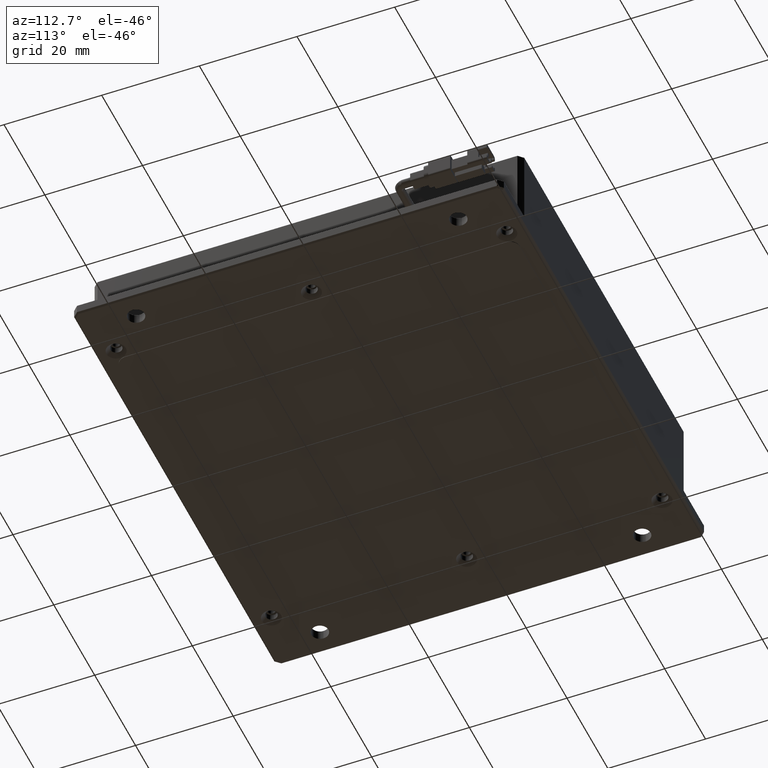
[diagram: clean part render]
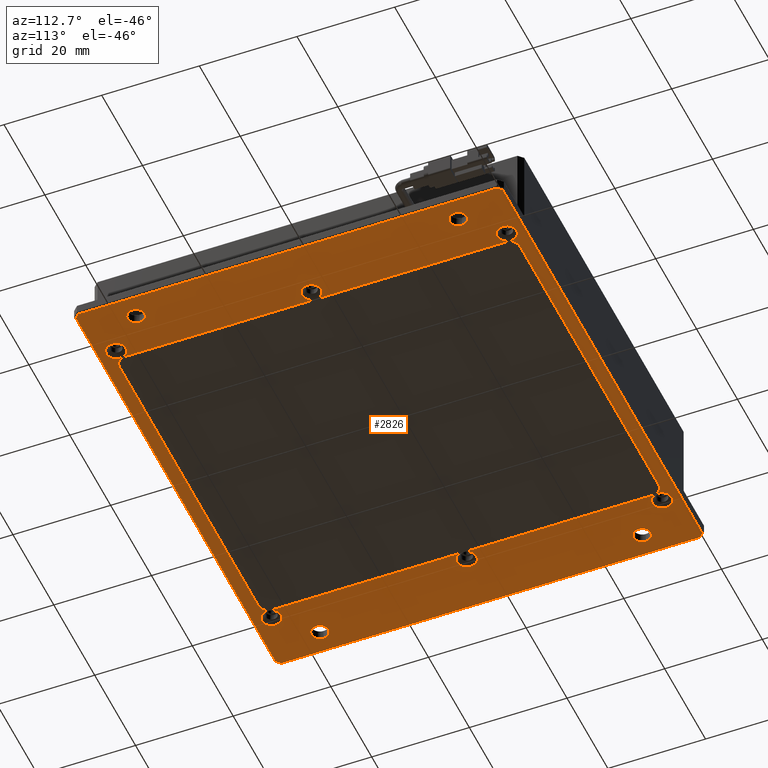
[diagram: same view with one face highlighted and labeled with its STEP entity id]
A machine part, auxiliary view. The second image highlights one B-rep face of the part: STEP entity #2826.
In plain terms, the highlighted planar face has unit normal (0, 0, -1).
Its self-contained STEP definition (entity closure, byte-faithful):
#55 = LINE ( 'NONE', #16753, #489 ) ;
#106 = VERTEX_POINT ( 'NONE', #8374 ) ;
#120 = DIRECTION ( 'NONE',  ( 4.448008912761044700E-017, 1.000000000000000000, -0.0000000000000000000 ) ) ;
#317 = CARTESIAN_POINT ( 'NONE',  ( -31.82342588928733200, -47.90007636502477300, -2.000000000004545700 ) ) ;
#372 = CIRCLE ( 'NONE', #15891, 1.999999999930418500 ) ;
#455 = CARTESIAN_POINT ( 'NONE',  ( 60.30231004200072700, -37.20007636502477100, -2.000000000004547500 ) ) ;
#489 = VECTOR ( 'NONE', #8498, 1000.000000000000000 ) ;
#614 = LINE ( 'NONE', #1420, #14351 ) ;
#713 = VERTEX_POINT ( 'NONE', #317 ) ;
#745 = CARTESIAN_POINT ( 'NONE',  ( -18.94768995799925900, 34.79992363497521500, -2.000000000004547500 ) ) ;
#820 = DIRECTION ( 'NONE',  ( 0.7071067811865386900, -0.7071067811865564500, 2.976314945436249100E-015 ) ) ;
#866 = CARTESIAN_POINT ( 'NONE',  ( -27.94768995799927000, 28.79992363497522900, -2.000000000004547500 ) ) ;
#946 = ORIENTED_EDGE ( 'NONE', *, *, #12706, .F. ) ;
#955 = LINE ( 'NONE', #2759, #15119 ) ;
#1078 = ORIENTED_EDGE ( 'NONE', *, *, #8092, .F. ) ;
#1105 = DIRECTION ( 'NONE',  ( -1.000000000000000000, 0.0000000000000000000, 0.0000000000000000000 ) ) ;
#1130 = VERTEX_POINT ( 'NONE', #9166 ) ;
#1150 = CIRCLE ( 'NONE', #3211, 2.000000000009102100 ) ;
#1155 = DIRECTION ( 'NONE',  ( -0.0000000000000000000, -1.000000000000000000, -0.0000000000000000000 ) ) ;
#1160 = DIRECTION ( 'NONE',  ( -0.0000000000000000000, -0.0000000000000000000, 1.000000000000000000 ) ) ;
#1188 = EDGE_CURVE ( 'NONE', #12519, #1525, #13114, .T. ) ;
#1207 = EDGE_CURVE ( 'NONE', #3207, #13213, #16312, .T. ) ;
#1379 = CARTESIAN_POINT ( 'NONE',  ( 51.05231004200074800, 34.79992363497521500, -2.000000000004547500 ) ) ;
#1420 = CARTESIAN_POINT ( 'NONE',  ( -32.94768995799925900, -47.90007636502477300, -2.000000000004547500 ) ) ;
#1460 = AXIS2_PLACEMENT_3D ( 'NONE', #3822, #13495, #5213 ) ;
#1477 = CARTESIAN_POINT ( 'NONE',  ( 53.05231004207031700, -44.20007636502478500, -1.999999999947704300 ) ) ;
#1496 = EDGE_CURVE ( 'NONE', #12560, #4036, #10093, .T. ) ;
#1497 = EDGE_LOOP ( 'NONE', ( #12605, #17536 ) ) ;
#1514 = ORIENTED_EDGE ( 'NONE', *, *, #12011, .F. ) ;
#1525 = VERTEX_POINT ( 'NONE', #7889 ) ;
#1556 = EDGE_LOOP ( 'NONE', ( #14469, #16270 ) ) ;
#1585 = CARTESIAN_POINT ( 'NONE',  ( 55.05231004200073400, 35.79992363497522200, -1.999999999947704300 ) ) ;
#1665 = VERTEX_POINT ( 'NONE', #6794 ) ;
#1666 = AXIS2_PLACEMENT_3D ( 'NONE', #2812, #12423, #4174 ) ;
#1682 = VERTEX_POINT ( 'NONE', #12323 ) ;
#1685 = CARTESIAN_POINT ( 'NONE',  ( 53.05231004200076200, -43.20007636502477100, -2.000000000004547500 ) ) ;
#1696 = DIRECTION ( 'NONE',  ( -0.0000000000000000000, -0.0000000000000000000, 1.000000000000000000 ) ) ;
#1729 = CARTESIAN_POINT ( 'NONE',  ( 62.05231004200072700, -37.20007636502477100, -2.000000000004547500 ) ) ;
#1755 = DIRECTION ( 'NONE',  ( 0.0000000000000000000, 0.0000000000000000000, 1.000000000000000000 ) ) ;
#1757 = VECTOR ( 'NONE', #120, 1000.000000000000000 ) ;
#1759 = VERTEX_POINT ( 'NONE', #12107 ) ;
#1821 = AXIS2_PLACEMENT_3D ( 'NONE', #866, #10471, #2222 ) ;
#1829 = FACE_BOUND ( 'NONE', #11648, .T. ) ;
#1991 = AXIS2_PLACEMENT_3D ( 'NONE', #6089, #15686, #7450 ) ;
#2026 = CARTESIAN_POINT ( 'NONE',  ( 55.05231004200073400, -4.200076365024784800, -1.999999999947704300 ) ) ;
#2053 = ORIENTED_EDGE ( 'NONE', *, *, #5964, .F. ) ;
#2204 = ORIENTED_EDGE ( 'NONE', *, *, #3273, .F. ) ;
#2222 = DIRECTION ( 'NONE',  ( -1.000000000000000000, 0.0000000000000000000, 0.0000000000000000000 ) ) ;
#2355 = CARTESIAN_POINT ( 'NONE',  ( -27.94768995799927000, 28.79992363497522900, -2.000000000004547500 ) ) ;
#2458 = CIRCLE ( 'NONE', #3255, 1.750000000000001600 ) ;
#2497 = DIRECTION ( 'NONE',  ( -0.0000000000000000000, -0.0000000000000000000, 1.000000000000000000 ) ) ;
#2522 = ORIENTED_EDGE ( 'NONE', *, *, #16069, .T. ) ;
#2545 = DIRECTION ( 'NONE',  ( -0.0000000000000000000, -0.0000000000000000000, 1.000000000000000000 ) ) ;
#2562 = CIRCLE ( 'NONE', #1821, 1.749999999999998000 ) ;
#2680 = FACE_BOUND ( 'NONE', #5235, .T. ) ;
#2698 = CARTESIAN_POINT ( 'NONE',  ( 53.05231004200075500, -43.20007636502477100, -2.000000000004547500 ) ) ;
#2754 = DIRECTION ( 'NONE',  ( 0.0000000000000000000, 0.0000000000000000000, -1.000000000000000000 ) ) ;
#2759 = CARTESIAN_POINT ( 'NONE',  ( 53.05231004200076200, -43.20007636502477100, -2.000000000004547500 ) ) ;
#2780 = AXIS2_PLACEMENT_3D ( 'NONE', #1585, #11219, #2971 ) ;
#2791 = DIRECTION ( 'NONE',  ( 0.0000000000000000000, 0.0000000000000000000, 1.000000000000000000 ) ) ;
#2812 = CARTESIAN_POINT ( 'NONE',  ( -20.94768995799925500, -44.20007636502478500, -2.000000000004547500 ) ) ;
#2826 = ADVANCED_FACE ( 'NONE', ( #6351, #5908, #13253, #12791, #2680, #9134, #5463, #1829, #16009, #12351 ), #2945, .T. ) ;
#2831 = ORIENTED_EDGE ( 'NONE', *, *, #1188, .F. ) ;
#2857 = DIRECTION ( 'NONE',  ( 1.000000000000000000, 0.0000000000000000000, 0.0000000000000000000 ) ) ;
#2884 = EDGE_LOOP ( 'NONE', ( #11410, #2831, #1078, #5909, #6581, #15117, #10429, #1514 ) ) ;
#2894 = ORIENTED_EDGE ( 'NONE', *, *, #11317, .T. ) ;
#2925 = CARTESIAN_POINT ( 'NONE',  ( 55.05231004200073400, -4.200076365024784800, -1.999999999947704300 ) ) ;
#2945 = PLANE ( 'NONE',  #6722 ) ;
#2965 = AXIS2_PLACEMENT_3D ( 'NONE', #2026, #11659, #3382 ) ;
#2971 = DIRECTION ( 'NONE',  ( -1.000000000000000000, 0.0000000000000000000, 0.0000000000000000000 ) ) ;
#2999 = DIRECTION ( 'NONE',  ( 0.0000000000000000000, 0.0000000000000000000, -1.000000000000000000 ) ) ;
#3027 = EDGE_LOOP ( 'NONE', ( #4110, #11451 ) ) ;
#3053 = EDGE_CURVE ( 'NONE', #6305, #713, #5014, .T. ) ;
#3107 = ORIENTED_EDGE ( 'NONE', *, *, #4274, .T. ) ;
#3114 = DIRECTION ( 'NONE',  ( -1.000000000000000000, 0.0000000000000000000, 0.0000000000000000000 ) ) ;
#3147 = CIRCLE ( 'NONE', #10363, 2.000000000009098500 ) ;
#3198 = EDGE_CURVE ( 'NONE', #106, #16610, #9988, .T. ) ;
#3207 = VERTEX_POINT ( 'NONE', #6663 ) ;
#3211 = AXIS2_PLACEMENT_3D ( 'NONE', #10736, #2497, #12110 ) ;
#3250 = CARTESIAN_POINT ( 'NONE',  ( -31.82342588928733200, 39.49992363497520400, -2.000000000004547900 ) ) ;
#3255 = AXIS2_PLACEMENT_3D ( 'NONE', #1729, #11366, #3114 ) ;
#3267 = ORIENTED_EDGE ( 'NONE', *, *, #17463, .T. ) ;
#3273 = EDGE_CURVE ( 'NONE', #13213, #4011, #955, .T. ) ;
#3300 = AXIS2_PLACEMENT_3D ( 'NONE', #9375, #1160, #10760 ) ;
#3336 = DIRECTION ( 'NONE',  ( 4.448008912761044700E-017, 1.000000000000000000, -0.0000000000000000000 ) ) ;
#3338 = DIRECTION ( 'NONE',  ( 0.0000000000000000000, 0.0000000000000000000, 1.000000000000000000 ) ) ;
#3352 = EDGE_CURVE ( 'NONE', #13985, #106, #15746, .T. ) ;
#3382 = DIRECTION ( 'NONE',  ( -1.000000000000000000, 0.0000000000000000000, 0.0000000000000000000 ) ) ;
#3505 = EDGE_CURVE ( 'NONE', #7940, #9141, #9072, .T. ) ;
#3587 = DIRECTION ( 'NONE',  ( -0.0000000000000000000, -0.0000000000000000000, 1.000000000000000000 ) ) ;
#3602 = AXIS2_PLACEMENT_3D ( 'NONE', #14088, #5834, #15450 ) ;
#3710 = DIRECTION ( 'NONE',  ( -1.000000000000000000, 0.0000000000000000000, 0.0000000000000000000 ) ) ;
#3822 = CARTESIAN_POINT ( 'NONE',  ( -20.94768995799925500, 35.79992363497520800, -2.000000000004547500 ) ) ;
#3841 = DIRECTION ( 'NONE',  ( 0.0000000000000000000, 0.0000000000000000000, -1.000000000000000000 ) ) ;
#3842 = AXIS2_PLACEMENT_3D ( 'NONE', #11014, #2791, #12399 ) ;
#3864 = CARTESIAN_POINT ( 'NONE',  ( -26.19768995799929500, -37.20007636502477100, -2.000000000004547500 ) ) ;
#3945 = CARTESIAN_POINT ( 'NONE',  ( -16.94768995799925500, -43.20007636502477100, -2.000000000004547500 ) ) ;
#4011 = VERTEX_POINT ( 'NONE', #8432 ) ;
#4036 = VERTEX_POINT ( 'NONE', #7103 ) ;
#4110 = ORIENTED_EDGE ( 'NONE', *, *, #15019, .T. ) ;
#4174 = DIRECTION ( 'NONE',  ( -1.000000000000000000, 0.0000000000000000000, 0.0000000000000000000 ) ) ;
#4231 = ORIENTED_EDGE ( 'NONE', *, *, #17437, .F. ) ;
#4274 = EDGE_CURVE ( 'NONE', #8272, #4583, #17600, .T. ) ;
#4282 = CIRCLE ( 'NONE', #11528, 2.000000000009098500 ) ;
#4308 = DIRECTION ( 'NONE',  ( -1.000000000000000000, 0.0000000000000000000, 0.0000000000000000000 ) ) ;
#4345 = VERTEX_POINT ( 'NONE', #3250 ) ;
#4474 = DIRECTION ( 'NONE',  ( -0.7071067811865572300, -0.7071067811865379100, 6.254911877518571900E-015 ) ) ;
#4531 = EDGE_CURVE ( 'NONE', #15067, #1130, #9410, .T. ) ;
#4554 = EDGE_CURVE ( 'NONE', #17116, #15620, #13083, .T. ) ;
#4583 = VERTEX_POINT ( 'NONE', #16223 ) ;
#4605 = VERTEX_POINT ( 'NONE', #12136 ) ;
#4792 = VERTEX_POINT ( 'NONE', #15442 ) ;
#4873 = ORIENTED_EDGE ( 'NONE', *, *, #9864, .T. ) ;
#4888 = CARTESIAN_POINT ( 'NONE',  ( 63.80231004200073400, 28.79992363497521500, -2.000000000004547500 ) ) ;
#4902 = CARTESIAN_POINT ( 'NONE',  ( 51.05231004200074800, -45.20007636502477800, -2.000000000004547500 ) ) ;
#4907 = AXIS2_PLACEMENT_3D ( 'NONE', #10025, #1755, #11397 ) ;
#4923 = CARTESIAN_POINT ( 'NONE',  ( 55.05231004200073400, -44.20007636502478500, -1.999999999947704300 ) ) ;
#4947 = AXIS2_PLACEMENT_3D ( 'NONE', #1379, #2754, #10979 ) ;
#5014 = LINE ( 'NONE', #13136, #12333 ) ;
#5213 = DIRECTION ( 'NONE',  ( -1.000000000000000000, 0.0000000000000000000, 0.0000000000000000000 ) ) ;
#5235 = EDGE_LOOP ( 'NONE', ( #7636, #17721 ) ) ;
#5243 = LINE ( 'NONE', #11338, #8904 ) ;
#5327 = DIRECTION ( 'NONE',  ( -1.000000000000000000, 0.0000000000000000000, 0.0000000000000000000 ) ) ;
#5395 = LINE ( 'NONE', #5550, #1757 ) ;
#5463 = FACE_BOUND ( 'NONE', #1497, .T. ) ;
#5509 = CARTESIAN_POINT ( 'NONE',  ( 53.05231004200076200, 34.79992363497521500, -2.000000000004547500 ) ) ;
#5550 = CARTESIAN_POINT ( 'NONE',  ( -18.94768995799925900, 34.79992363497521500, -2.000000000004547500 ) ) ;
#5756 = ORIENTED_EDGE ( 'NONE', *, *, #17451, .T. ) ;
#5834 = DIRECTION ( 'NONE',  ( 0.0000000000000000000, 0.0000000000000000000, 1.000000000000000000 ) ) ;
#5908 = FACE_BOUND ( 'NONE', #9549, .T. ) ;
#5909 = ORIENTED_EDGE ( 'NONE', *, *, #12001, .F. ) ;
#5964 = EDGE_CURVE ( 'NONE', #1665, #3207, #14673, .T. ) ;
#6089 = CARTESIAN_POINT ( 'NONE',  ( 55.05231004200073400, -44.20007636502478500, -1.999999999947704300 ) ) ;
#6305 = VERTEX_POINT ( 'NONE', #9785 ) ;
#6337 = DIRECTION ( 'NONE',  ( -1.000000000000000000, 0.0000000000000000000, 0.0000000000000000000 ) ) ;
#6351 = FACE_BOUND ( 'NONE', #15015, .T. ) ;
#6554 = EDGE_CURVE ( 'NONE', #12514, #9704, #14223, .T. ) ;
#6580 = LINE ( 'NONE', #745, #12159 ) ;
#6581 = ORIENTED_EDGE ( 'NONE', *, *, #17056, .F. ) ;
#6631 = CARTESIAN_POINT ( 'NONE',  ( 62.05231004200072700, -37.20007636502477100, -2.000000000004547500 ) ) ;
#6663 = CARTESIAN_POINT ( 'NONE',  ( 51.05231004200074800, 36.79992363497522200, -2.000000000004547500 ) ) ;
#6722 = AXIS2_PLACEMENT_3D ( 'NONE', #11254, #2999, #12627 ) ;
#6794 = CARTESIAN_POINT ( 'NONE',  ( -16.94768995799924500, 36.79992363497521500, -2.000000000004547500 ) ) ;
#6806 = CIRCLE ( 'NONE', #7575, 1.750000000000001600 ) ;
#6970 = LINE ( 'NONE', #9912, #13878 ) ;
#6987 = EDGE_CURVE ( 'NONE', #1759, #1665, #11085, .T. ) ;
#7103 = CARTESIAN_POINT ( 'NONE',  ( -26.19768995799927000, 28.79992363497522900, -2.000000000004547500 ) ) ;
#7256 = EDGE_CURVE ( 'NONE', #7673, #14991, #2458, .T. ) ;
#7450 = DIRECTION ( 'NONE',  ( -1.000000000000000000, 0.0000000000000000000, 0.0000000000000000000 ) ) ;
#7575 = AXIS2_PLACEMENT_3D ( 'NONE', #6631, #16244, #8022 ) ;
#7636 = ORIENTED_EDGE ( 'NONE', *, *, #4554, .T. ) ;
#7673 = VERTEX_POINT ( 'NONE', #15615 ) ;
#7813 = ORIENTED_EDGE ( 'NONE', *, *, #6987, .F. ) ;
#7889 = CARTESIAN_POINT ( 'NONE',  ( 65.92804597328886000, 39.49992363497520400, -2.000000000004543500 ) ) ;
#7940 = VERTEX_POINT ( 'NONE', #3864 ) ;
#8022 = DIRECTION ( 'NONE',  ( -1.000000000000000000, 0.0000000000000000000, 0.0000000000000000000 ) ) ;
#8030 = EDGE_CURVE ( 'NONE', #10155, #1759, #5395, .T. ) ;
#8092 = EDGE_CURVE ( 'NONE', #9261, #12519, #55, .T. ) ;
#8114 = ORIENTED_EDGE ( 'NONE', *, *, #7256, .T. ) ;
#8211 = LINE ( 'NONE', #1685, #10180 ) ;
#8272 = VERTEX_POINT ( 'NONE', #4888 ) ;
#8374 = CARTESIAN_POINT ( 'NONE',  ( -16.94768995799925200, -45.20007636502477100, -2.000000000004547500 ) ) ;
#8417 = CARTESIAN_POINT ( 'NONE',  ( 51.05231004200074800, 36.79992363497521500, -2.000000000004547500 ) ) ;
#8429 = VECTOR ( 'NONE', #8457, 1000.000000000000000 ) ;
#8432 = CARTESIAN_POINT ( 'NONE',  ( 53.05231004200076200, -4.200076365024784800, -1.999999999947704300 ) ) ;
#8457 = DIRECTION ( 'NONE',  ( -1.000000000000000000, 1.020425574104004100E-016, -0.0000000000000000000 ) ) ;
#8481 = ORIENTED_EDGE ( 'NONE', *, *, #10268, .T. ) ;
#8486 = AXIS2_PLACEMENT_3D ( 'NONE', #12095, #3841, #13513 ) ;
#8498 = DIRECTION ( 'NONE',  ( 0.0000000000000000000, 1.000000000000000000, 0.0000000000000000000 ) ) ;
#8528 = CARTESIAN_POINT ( 'NONE',  ( 57.05231004193115800, 35.79992363497522200, -1.999999999947704300 ) ) ;
#8641 = EDGE_CURVE ( 'NONE', #4583, #8272, #8862, .T. ) ;
#8772 = ORIENTED_EDGE ( 'NONE', *, *, #3352, .F. ) ;
#8862 = CIRCLE ( 'NONE', #3842, 1.750000000000001600 ) ;
#8882 = CIRCLE ( 'NONE', #1991, 1.999999999930418500 ) ;
#8891 = CARTESIAN_POINT ( 'NONE',  ( -18.94768995799015700, 35.79992363497520800, -2.000000000004547500 ) ) ;
#8904 = VECTOR ( 'NONE', #4474, 1000.000000000000000 ) ;
#9031 = CARTESIAN_POINT ( 'NONE',  ( 65.92804597328880300, -47.90007636502477300, -2.000000000004547000 ) ) ;
#9072 = CIRCLE ( 'NONE', #12489, 1.749999999999998000 ) ;
#9134 = FACE_BOUND ( 'NONE', #1556, .T. ) ;
#9141 = VERTEX_POINT ( 'NONE', #16403 ) ;
#9166 = CARTESIAN_POINT ( 'NONE',  ( -22.94768995800835400, 35.79992363497520800, -2.000000000004547500 ) ) ;
#9241 = CIRCLE ( 'NONE', #1666, 2.000000000009098500 ) ;
#9261 = VERTEX_POINT ( 'NONE', #9821 ) ;
#9321 = DIRECTION ( 'NONE',  ( 0.0000000000000000000, 0.0000000000000000000, -1.000000000000000000 ) ) ;
#9375 = CARTESIAN_POINT ( 'NONE',  ( 55.05231004200073400, 35.79992363497522200, -1.999999999947704300 ) ) ;
#9410 = CIRCLE ( 'NONE', #1460, 2.000000000009098500 ) ;
#9440 = VECTOR ( 'NONE', #14984, 999.9999999999998900 ) ;
#9466 = ORIENTED_EDGE ( 'NONE', *, *, #4531, .T. ) ;
#9487 = AXIS2_PLACEMENT_3D ( 'NONE', #17559, #9321, #1105 ) ;
#9506 = EDGE_CURVE ( 'NONE', #4036, #12560, #2562, .T. ) ;
#9549 = EDGE_LOOP ( 'NONE', ( #2522, #3267 ) ) ;
#9704 = VERTEX_POINT ( 'NONE', #1477 ) ;
#9748 = LINE ( 'NONE', #10752, #17068 ) ;
#9785 = CARTESIAN_POINT ( 'NONE',  ( -32.64768995799924800, -47.07581229631284700, -2.000000000004546600 ) ) ;
#9821 = CARTESIAN_POINT ( 'NONE',  ( 66.75231004200077200, -47.07581229631284000, -2.000000000004539500 ) ) ;
#9836 = AXIS2_PLACEMENT_3D ( 'NONE', #2355, #11980, #3710 ) ;
#9864 = EDGE_CURVE ( 'NONE', #11613, #4011, #16810, .T. ) ;
#9912 = CARTESIAN_POINT ( 'NONE',  ( 65.92804597328880300, -47.90007636502477300, -2.000000000004544800 ) ) ;
#9967 = CARTESIAN_POINT ( 'NONE',  ( -20.94768995799925500, 35.79992363497520800, -2.000000000004547500 ) ) ;
#9988 = CIRCLE ( 'NONE', #10666, 2.000000000000005300 ) ;
#10025 = CARTESIAN_POINT ( 'NONE',  ( 62.05231004200072700, 28.79992363497521500, -2.000000000004547500 ) ) ;
#10093 = CIRCLE ( 'NONE', #9836, 1.749999999999998000 ) ;
#10125 = CARTESIAN_POINT ( 'NONE',  ( -18.94768995799926300, -43.20007636502477100, -2.000000000004547500 ) ) ;
#10155 = VERTEX_POINT ( 'NONE', #16551 ) ;
#10180 = VECTOR ( 'NONE', #12685, 1000.000000000000000 ) ;
#10268 = EDGE_CURVE ( 'NONE', #1130, #15067, #4282, .T. ) ;
#10363 = AXIS2_PLACEMENT_3D ( 'NONE', #10777, #2545, #12154 ) ;
#10402 = DIRECTION ( 'NONE',  ( -1.000000000000000000, 0.0000000000000000000, -0.0000000000000000000 ) ) ;
#10429 = ORIENTED_EDGE ( 'NONE', *, *, #13088, .F. ) ;
#10471 = DIRECTION ( 'NONE',  ( 0.0000000000000000000, 0.0000000000000000000, 1.000000000000000000 ) ) ;
#10666 = AXIS2_PLACEMENT_3D ( 'NONE', #3945, #13610, #5327 ) ;
#10686 = ORIENTED_EDGE ( 'NONE', *, *, #15131, .T. ) ;
#10716 = ORIENTED_EDGE ( 'NONE', *, *, #3198, .F. ) ;
#10736 = CARTESIAN_POINT ( 'NONE',  ( -20.94768995799925200, -4.200076365024784800, -2.000000000004547500 ) ) ;
#10752 = CARTESIAN_POINT ( 'NONE',  ( -32.64768995799924800, -48.20007636502478500, -2.000000000004547500 ) ) ;
#10760 = DIRECTION ( 'NONE',  ( -1.000000000000000000, 0.0000000000000000000, 0.0000000000000000000 ) ) ;
#10777 = CARTESIAN_POINT ( 'NONE',  ( -20.94768995799925500, -44.20007636502478500, -2.000000000004547500 ) ) ;
#10801 = ORIENTED_EDGE ( 'NONE', *, *, #1207, .F. ) ;
#10979 = DIRECTION ( 'NONE',  ( -1.000000000000000000, 0.0000000000000000000, 0.0000000000000000000 ) ) ;
#11014 = CARTESIAN_POINT ( 'NONE',  ( 62.05231004200072700, 28.79992363497521500, -2.000000000004547500 ) ) ;
#11019 = ORIENTED_EDGE ( 'NONE', *, *, #8030, .F. ) ;
#11085 = CIRCLE ( 'NONE', #9487, 2.000000000000008900 ) ;
#11202 = VERTEX_POINT ( 'NONE', #2698 ) ;
#11219 = DIRECTION ( 'NONE',  ( -0.0000000000000000000, -0.0000000000000000000, 1.000000000000000000 ) ) ;
#11254 = CARTESIAN_POINT ( 'NONE',  ( -32.94768995799925900, 39.79992363497521500, -2.000000000004547500 ) ) ;
#11280 = DIRECTION ( 'NONE',  ( 0.7071067811865567900, 0.7071067811865383600, 5.580590522692828900E-015 ) ) ;
#11317 = EDGE_CURVE ( 'NONE', #4011, #11613, #372, .T. ) ;
#11332 = DIRECTION ( 'NONE',  ( -1.000000000000000000, 0.0000000000000000000, 0.0000000000000000000 ) ) ;
#11338 = CARTESIAN_POINT ( 'NONE',  ( -31.82342588928733200, 39.49992363497520400, -2.000000000004547900 ) ) ;
#11366 = DIRECTION ( 'NONE',  ( 0.0000000000000000000, 0.0000000000000000000, 1.000000000000000000 ) ) ;
#11397 = DIRECTION ( 'NONE',  ( -1.000000000000000000, 0.0000000000000000000, 0.0000000000000000000 ) ) ;
#11410 = ORIENTED_EDGE ( 'NONE', *, *, #16391, .F. ) ;
#11451 = ORIENTED_EDGE ( 'NONE', *, *, #6554, .T. ) ;
#11528 = AXIS2_PLACEMENT_3D ( 'NONE', #9967, #1696, #11332 ) ;
#11562 = EDGE_CURVE ( 'NONE', #16610, #10155, #6580, .T. ) ;
#11605 = CARTESIAN_POINT ( 'NONE',  ( -27.94768995799929100, -37.20007636502477100, -2.000000000004547500 ) ) ;
#11613 = VERTEX_POINT ( 'NONE', #11837 ) ;
#11648 = EDGE_LOOP ( 'NONE', ( #5756, #8114 ) ) ;
#11659 = DIRECTION ( 'NONE',  ( -0.0000000000000000000, -0.0000000000000000000, 1.000000000000000000 ) ) ;
#11837 = CARTESIAN_POINT ( 'NONE',  ( 57.05231004193115800, -4.200076365024784800, -1.999999999947704300 ) ) ;
#11852 = CARTESIAN_POINT ( 'NONE',  ( -20.94768995799925200, -4.200076365024784800, -2.000000000004547500 ) ) ;
#11980 = DIRECTION ( 'NONE',  ( 0.0000000000000000000, 0.0000000000000000000, 1.000000000000000000 ) ) ;
#12001 = EDGE_CURVE ( 'NONE', #17334, #9261, #6970, .T. ) ;
#12011 = EDGE_CURVE ( 'NONE', #4345, #4605, #5243, .T. ) ;
#12083 = ORIENTED_EDGE ( 'NONE', *, *, #8641, .T. ) ;
#12095 = CARTESIAN_POINT ( 'NONE',  ( 51.05231004200074800, -43.20007636502477100, -2.000000000004547500 ) ) ;
#12107 = CARTESIAN_POINT ( 'NONE',  ( -18.94768995799925200, 34.79992363497521500, -2.000000000004547500 ) ) ;
#12110 = DIRECTION ( 'NONE',  ( -1.000000000000000000, 0.0000000000000000000, 0.0000000000000000000 ) ) ;
#12136 = CARTESIAN_POINT ( 'NONE',  ( -32.64768995799924800, 38.67565956626331300, -2.000000000004545700 ) ) ;
#12154 = DIRECTION ( 'NONE',  ( -1.000000000000000000, 0.0000000000000000000, 0.0000000000000000000 ) ) ;
#12159 = VECTOR ( 'NONE', #3336, 1000.000000000000000 ) ;
#12317 = CIRCLE ( 'NONE', #13970, 2.000000000009102100 ) ;
#12323 = CARTESIAN_POINT ( 'NONE',  ( -22.94768995800835400, -44.20007636502478500, -2.000000000004547500 ) ) ;
#12333 = VECTOR ( 'NONE', #820, 1000.000000000000000 ) ;
#12351 = FACE_OUTER_BOUND ( 'NONE', #2884, .T. ) ;
#12399 = DIRECTION ( 'NONE',  ( -1.000000000000000000, 0.0000000000000000000, 0.0000000000000000000 ) ) ;
#12423 = DIRECTION ( 'NONE',  ( -0.0000000000000000000, -0.0000000000000000000, 1.000000000000000000 ) ) ;
#12448 = CARTESIAN_POINT ( 'NONE',  ( -29.69768995799926600, 28.79992363497522900, -2.000000000004547500 ) ) ;
#12489 = AXIS2_PLACEMENT_3D ( 'NONE', #11605, #3338, #12988 ) ;
#12514 = VERTEX_POINT ( 'NONE', #13748 ) ;
#12519 = VERTEX_POINT ( 'NONE', #15108 ) ;
#12549 = DIRECTION ( 'NONE',  ( -0.0000000000000000000, -0.0000000000000000000, 1.000000000000000000 ) ) ;
#12560 = VERTEX_POINT ( 'NONE', #12448 ) ;
#12605 = ORIENTED_EDGE ( 'NONE', *, *, #1496, .T. ) ;
#12627 = DIRECTION ( 'NONE',  ( -1.000000000000000000, 0.0000000000000000000, -0.0000000000000000000 ) ) ;
#12685 = DIRECTION ( 'NONE',  ( -0.0000000000000000000, -1.000000000000000000, -0.0000000000000000000 ) ) ;
#12706 = EDGE_CURVE ( 'NONE', #4011, #11202, #8211, .T. ) ;
#12720 = CIRCLE ( 'NONE', #2780, 1.999999999930418500 ) ;
#12791 = FACE_BOUND ( 'NONE', #3027, .T. ) ;
#12958 = VECTOR ( 'NONE', #13858, 1000.000000000000000 ) ;
#12988 = DIRECTION ( 'NONE',  ( -1.000000000000000000, 0.0000000000000000000, 0.0000000000000000000 ) ) ;
#13083 = CIRCLE ( 'NONE', #3300, 1.999999999930418500 ) ;
#13088 = EDGE_CURVE ( 'NONE', #4605, #6305, #9748, .T. ) ;
#13114 = LINE ( 'NONE', #16840, #9440 ) ;
#13136 = CARTESIAN_POINT ( 'NONE',  ( -32.64768995799924800, -47.07581229631284700, -2.000000000004544400 ) ) ;
#13170 = CARTESIAN_POINT ( 'NONE',  ( -32.94768995799925900, 39.49992363497520400, -2.000000000004547500 ) ) ;
#13213 = VERTEX_POINT ( 'NONE', #5509 ) ;
#13253 = FACE_BOUND ( 'NONE', #14939, .T. ) ;
#13257 = DIRECTION ( 'NONE',  ( -1.000000000000000000, 0.0000000000000000000, 0.0000000000000000000 ) ) ;
#13345 = VECTOR ( 'NONE', #10402, 1000.000000000000000 ) ;
#13495 = DIRECTION ( 'NONE',  ( -0.0000000000000000000, -0.0000000000000000000, 1.000000000000000000 ) ) ;
#13513 = DIRECTION ( 'NONE',  ( -1.000000000000000000, 0.0000000000000000000, 0.0000000000000000000 ) ) ;
#13610 = DIRECTION ( 'NONE',  ( 0.0000000000000000000, 0.0000000000000000000, -1.000000000000000000 ) ) ;
#13689 = EDGE_CURVE ( 'NONE', #10155, #16570, #1150, .T. ) ;
#13719 = CIRCLE ( 'NONE', #8486, 2.000000000000008900 ) ;
#13748 = CARTESIAN_POINT ( 'NONE',  ( 57.05231004193115800, -44.20007636502478500, -1.999999999947704300 ) ) ;
#13858 = DIRECTION ( 'NONE',  ( 1.000000000000000000, -0.0000000000000000000, -0.0000000000000000000 ) ) ;
#13878 = VECTOR ( 'NONE', #11280, 999.9999999999998900 ) ;
#13970 = AXIS2_PLACEMENT_3D ( 'NONE', #11852, #3587, #13257 ) ;
#13985 = VERTEX_POINT ( 'NONE', #4902 ) ;
#14088 = CARTESIAN_POINT ( 'NONE',  ( -27.94768995799929100, -37.20007636502477100, -2.000000000004547500 ) ) ;
#14223 = CIRCLE ( 'NONE', #17330, 1.999999999930418500 ) ;
#14265 = EDGE_CURVE ( 'NONE', #15620, #17116, #12720, .T. ) ;
#14351 = VECTOR ( 'NONE', #2857, 1000.000000000000000 ) ;
#14353 = ORIENTED_EDGE ( 'NONE', *, *, #13689, .T. ) ;
#14469 = ORIENTED_EDGE ( 'NONE', *, *, #15627, .T. ) ;
#14568 = DIRECTION ( 'NONE',  ( -0.0000000000000000000, -0.0000000000000000000, 1.000000000000000000 ) ) ;
#14673 = LINE ( 'NONE', #8417, #12958 ) ;
#14939 = EDGE_LOOP ( 'NONE', ( #8481, #9466 ) ) ;
#14984 = DIRECTION ( 'NONE',  ( -0.7071067811865415800, 0.7071067811865535700, -8.928944836308935800E-015 ) ) ;
#14991 = VERTEX_POINT ( 'NONE', #455 ) ;
#15015 = EDGE_LOOP ( 'NONE', ( #8772, #4231, #946, #2894, #4873, #2204, #10801, #2053, #7813, #11019, #14353, #10686, #15589, #10716 ) ) ;
#15019 = EDGE_CURVE ( 'NONE', #9704, #12514, #8882, .T. ) ;
#15067 = VERTEX_POINT ( 'NONE', #8891 ) ;
#15108 = CARTESIAN_POINT ( 'NONE',  ( 66.75231004200074400, 38.67565956626329900, -2.000000000004530200 ) ) ;
#15117 = ORIENTED_EDGE ( 'NONE', *, *, #3053, .F. ) ;
#15119 = VECTOR ( 'NONE', #15143, 1000.000000000000000 ) ;
#15131 = EDGE_CURVE ( 'NONE', #16570, #10155, #12317, .T. ) ;
#15143 = DIRECTION ( 'NONE',  ( -0.0000000000000000000, -1.000000000000000000, -0.0000000000000000000 ) ) ;
#15442 = CARTESIAN_POINT ( 'NONE',  ( -18.94768995799015700, -44.20007636502478500, -2.000000000004547500 ) ) ;
#15450 = DIRECTION ( 'NONE',  ( -1.000000000000000000, 0.0000000000000000000, 0.0000000000000000000 ) ) ;
#15589 = ORIENTED_EDGE ( 'NONE', *, *, #11562, .F. ) ;
#15615 = CARTESIAN_POINT ( 'NONE',  ( 63.80231004200073400, -37.20007636502477100, -2.000000000004547500 ) ) ;
#15620 = VERTEX_POINT ( 'NONE', #8528 ) ;
#15627 = EDGE_CURVE ( 'NONE', #9141, #7940, #16584, .T. ) ;
#15686 = DIRECTION ( 'NONE',  ( -0.0000000000000000000, -0.0000000000000000000, 1.000000000000000000 ) ) ;
#15746 = LINE ( 'NONE', #16700, #8429 ) ;
#15891 = AXIS2_PLACEMENT_3D ( 'NONE', #2925, #12549, #4308 ) ;
#16009 = FACE_BOUND ( 'NONE', #16481, .T. ) ;
#16069 = EDGE_CURVE ( 'NONE', #1682, #4792, #9241, .T. ) ;
#16223 = CARTESIAN_POINT ( 'NONE',  ( 60.30231004200072700, 28.79992363497521500, -2.000000000004547500 ) ) ;
#16244 = DIRECTION ( 'NONE',  ( 0.0000000000000000000, 0.0000000000000000000, 1.000000000000000000 ) ) ;
#16270 = ORIENTED_EDGE ( 'NONE', *, *, #3505, .T. ) ;
#16312 = CIRCLE ( 'NONE', #4947, 2.000000000000008900 ) ;
#16391 = EDGE_CURVE ( 'NONE', #1525, #4345, #16992, .T. ) ;
#16403 = CARTESIAN_POINT ( 'NONE',  ( -29.69768995799929100, -37.20007636502477100, -2.000000000004547500 ) ) ;
#16481 = EDGE_LOOP ( 'NONE', ( #12083, #3107 ) ) ;
#16551 = CARTESIAN_POINT ( 'NONE',  ( -18.94768995799925900, -4.200076365024784800, -2.000000000004547500 ) ) ;
#16570 = VERTEX_POINT ( 'NONE', #16963 ) ;
#16584 = CIRCLE ( 'NONE', #3602, 1.749999999999998000 ) ;
#16610 = VERTEX_POINT ( 'NONE', #10125 ) ;
#16700 = CARTESIAN_POINT ( 'NONE',  ( -16.94768995799925200, -45.20007636502477100, -2.000000000004547500 ) ) ;
#16749 = CARTESIAN_POINT ( 'NONE',  ( 53.05231004207031700, 35.79992363497522200, -1.999999999947704300 ) ) ;
#16753 = CARTESIAN_POINT ( 'NONE',  ( 66.75231004200074400, -48.20007636502478500, -2.000000000004533700 ) ) ;
#16810 = CIRCLE ( 'NONE', #2965, 1.999999999930418500 ) ;
#16840 = CARTESIAN_POINT ( 'NONE',  ( 66.75231004200077200, 38.67565956626327100, -2.000000000004519900 ) ) ;
#16963 = CARTESIAN_POINT ( 'NONE',  ( -22.94768995800835400, -4.200076365024784800, -2.000000000004547500 ) ) ;
#16992 = LINE ( 'NONE', #13170, #13345 ) ;
#17056 = EDGE_CURVE ( 'NONE', #713, #17334, #614, .T. ) ;
#17068 = VECTOR ( 'NONE', #1155, 1000.000000000000000 ) ;
#17116 = VERTEX_POINT ( 'NONE', #16749 ) ;
#17330 = AXIS2_PLACEMENT_3D ( 'NONE', #4923, #14568, #6337 ) ;
#17334 = VERTEX_POINT ( 'NONE', #9031 ) ;
#17437 = EDGE_CURVE ( 'NONE', #11202, #13985, #13719, .T. ) ;
#17451 = EDGE_CURVE ( 'NONE', #14991, #7673, #6806, .T. ) ;
#17463 = EDGE_CURVE ( 'NONE', #4792, #1682, #3147, .T. ) ;
#17536 = ORIENTED_EDGE ( 'NONE', *, *, #9506, .T. ) ;
#17559 = CARTESIAN_POINT ( 'NONE',  ( -16.94768995799924500, 34.79992363497521500, -2.000000000004547500 ) ) ;
#17600 = CIRCLE ( 'NONE', #4907, 1.750000000000001600 ) ;
#17721 = ORIENTED_EDGE ( 'NONE', *, *, #14265, .T. ) ;